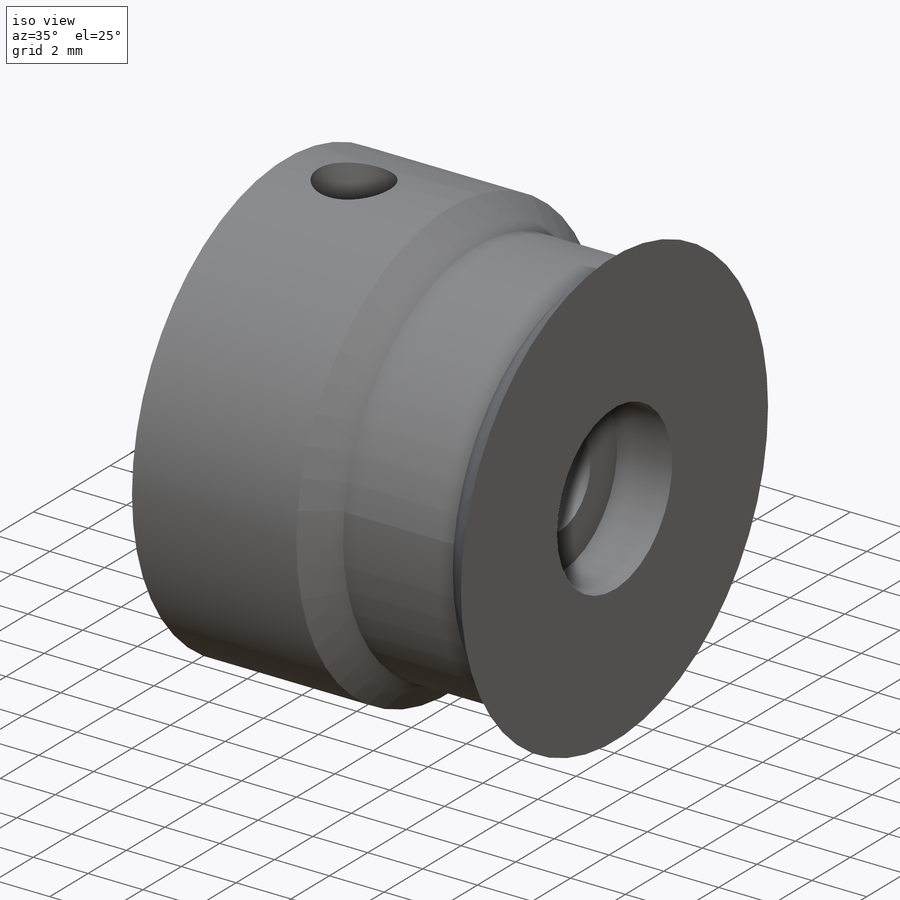
[diagram: iso view]
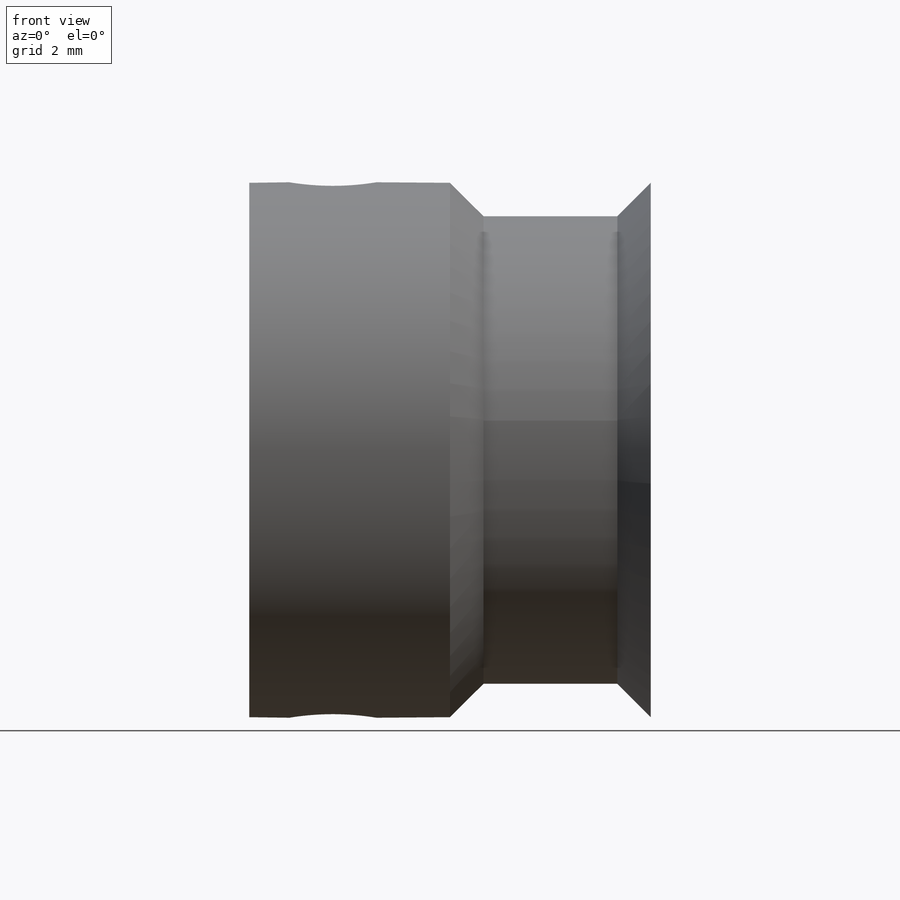
[diagram: front view]
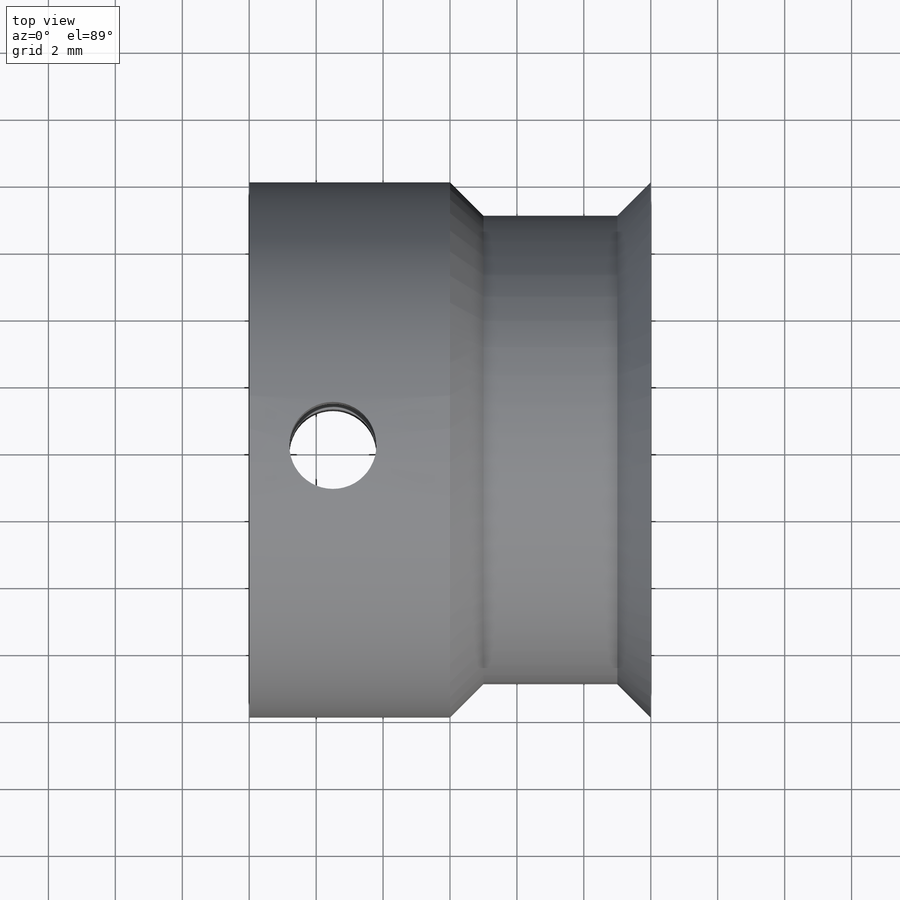
[diagram: top view]
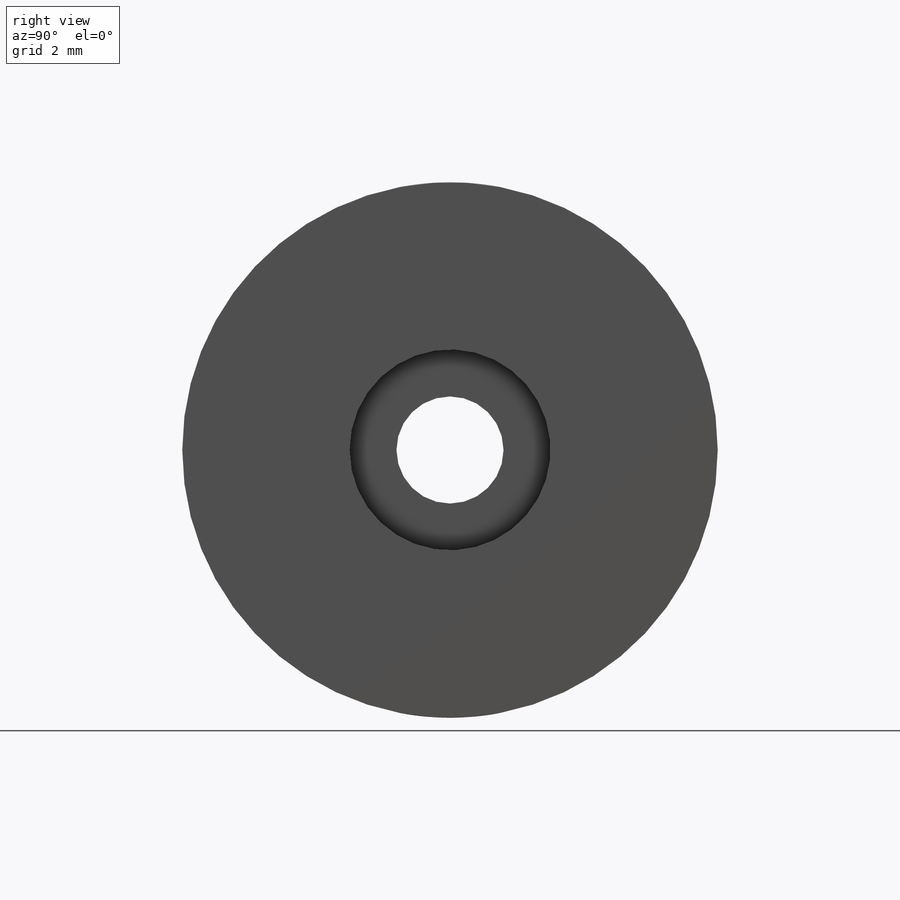
[diagram: right view]
SOLIDWORKS PART (.sldprt)
format: sldprt  version: not decoded by parser v0  size: 218,112 bytes
history: native  units: mm
features: sketch x2, material x1, revolve x1, cut_extrude x1, chamfer x1 (+13 scaffold rows collapsed)
feature tree (19):
  scaffold x13  (default folders/planes/origin — collapsed)
  material  "Material <not specified>"
  sketch  "Sketch1"  dims[c1.D1=12.0mm c1.D2=4.0mm c1.D3=1.0mm c1.D4=2.0mm c1.D5=1.0mm c1.D6=4.5mm c1.D7=7.0mm c1.D8=2.0mm c1.D9=3.0mm c1.D10=1.6mm c1.D11=4.0mm c2.D7=5.0mm c2.D12=2.0mm c3.D7=7.0mm c3.D13=8.0mm c3.D3=1.0mm c3.D14=8.0mm c3.D2=4.0mm c3.D11=5.0mm]
  revolve  "Revolve1"  Angle=360deg
  sketch  "Sketch2"  dims[D1=2.6mm D2=2.5mm]
  cut_extrude  "Cut-Extrude1"  Depth=10mm
  chamfer  "Chamfer1"  Distance=1mm Angle=45deg
decode coverage: 5 of 5 modeling features carry decoded parameters
note: suppression state not decoded; provenance and decode notes live in map.json
